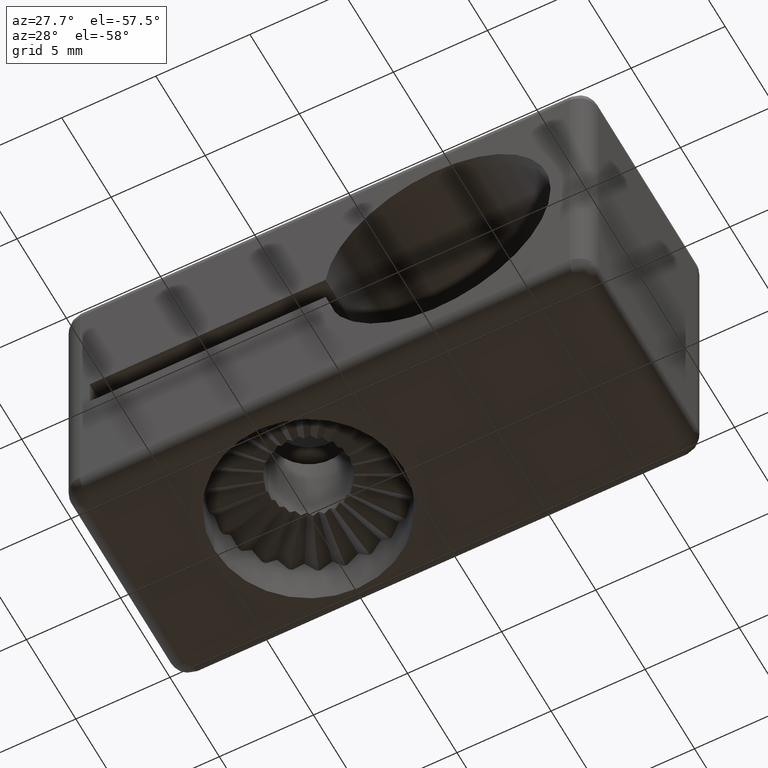
[diagram: clean part render]
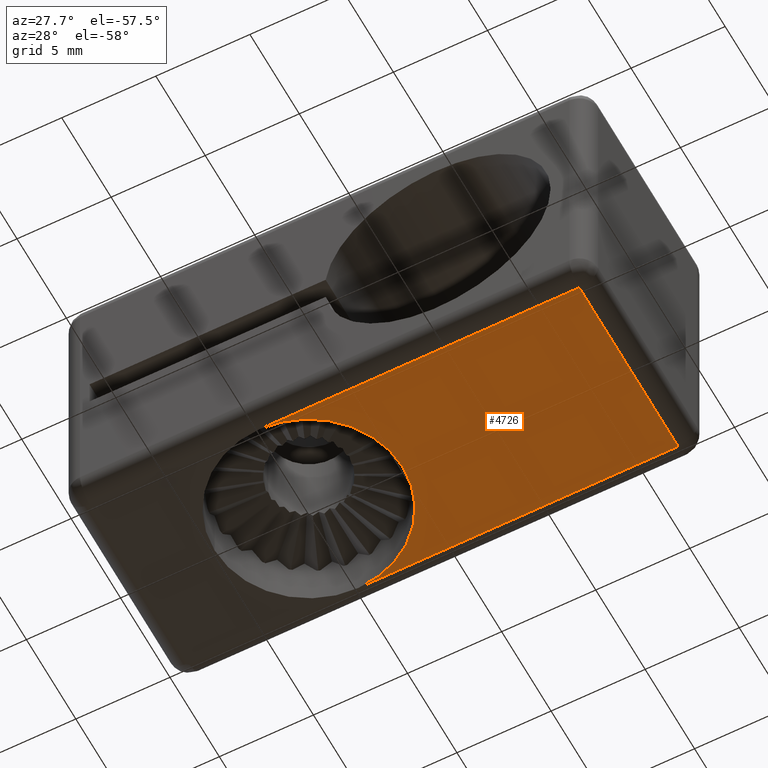
[diagram: same view with one face highlighted and labeled with its STEP entity id]
A machine part, auxiliary view. The second image highlights one B-rep face of the part: STEP entity #4726.
In plain terms, the highlighted planar face has unit normal (0, 0, 1).
Its self-contained STEP definition (entity closure, byte-faithful):
#320 = VECTOR ( 'NONE', #3031, 1000.000000000000000 ) ;
#491 = DIRECTION ( 'NONE',  ( 0.0000000000000000000, 0.0000000000000000000, -1.000000000000000000 ) ) ;
#599 = EDGE_CURVE ( 'NONE', #3716, #1193, #5389, .T. ) ;
#720 = DIRECTION ( 'NONE',  ( -1.000000000000000000, 0.0000000000000000000, 0.0000000000000000000 ) ) ;
#1032 = LINE ( 'NONE', #5135, #1169 ) ;
#1071 = DIRECTION ( 'NONE',  ( 0.0000000000000000000, 0.0000000000000000000, 1.000000000000000000 ) ) ;
#1157 = CARTESIAN_POINT ( 'NONE',  ( 17.00000000000000000, -4.999999999999999100, 0.0000000000000000000 ) ) ;
#1169 = VECTOR ( 'NONE', #5580, 1000.000000000000000 ) ;
#1193 = VERTEX_POINT ( 'NONE', #4594 ) ;
#1229 = ORIENTED_EDGE ( 'NONE', *, *, #1748, .F. ) ;
#1359 = DIRECTION ( 'NONE',  ( -1.000000000000000000, 0.0000000000000000000, 0.0000000000000000000 ) ) ;
#1500 = DIRECTION ( 'NONE',  ( 1.000000000000000000, 0.0000000000000000000, -0.0000000000000000000 ) ) ;
#1527 = ORIENTED_EDGE ( 'NONE', *, *, #599, .F. ) ;
#1596 = VERTEX_POINT ( 'NONE', #2444 ) ;
#1686 = DIRECTION ( 'NONE',  ( -1.000000000000000000, -3.336006684570780300E-017, -0.0000000000000000000 ) ) ;
#1748 = EDGE_CURVE ( 'NONE', #1596, #5374, #3643, .T. ) ;
#1788 = ORIENTED_EDGE ( 'NONE', *, *, #2541, .F. ) ;
#2102 = CIRCLE ( 'NONE', #3880, 5.000000000000000000 ) ;
#2444 = CARTESIAN_POINT ( 'NONE',  ( 4.592425496802574000E-016, -4.999999999999999100, 0.0000000000000000000 ) ) ;
#2541 = EDGE_CURVE ( 'NONE', #2805, #1596, #2102, .T. ) ;
#2689 = CARTESIAN_POINT ( 'NONE',  ( 17.00000000000000000, 5.000000000000000000, 0.0000000000000000000 ) ) ;
#2805 = VERTEX_POINT ( 'NONE', #5617 ) ;
#2845 = CARTESIAN_POINT ( 'NONE',  ( 17.00000000000000000, 5.000000000000000000, 0.0000000000000000000 ) ) ;
#2950 = CARTESIAN_POINT ( 'NONE',  ( -8.999999999999989300, -5.000000000000000000, 0.0000000000000000000 ) ) ;
#3031 = DIRECTION ( 'NONE',  ( 1.000000000000000000, 6.672013369141570400E-017, -0.0000000000000000000 ) ) ;
#3399 = CIRCLE ( 'NONE', #4865, 5.000000000000000000 ) ;
#3565 = ORIENTED_EDGE ( 'NONE', *, *, #4046, .F. ) ;
#3633 = PLANE ( 'NONE',  #4243 ) ;
#3643 = LINE ( 'NONE', #2950, #320 ) ;
#3716 = VERTEX_POINT ( 'NONE', #2689 ) ;
#3880 = AXIS2_PLACEMENT_3D ( 'NONE', #4541, #4189, #720 ) ;
#4046 = EDGE_CURVE ( 'NONE', #1193, #2805, #3399, .T. ) ;
#4189 = DIRECTION ( 'NONE',  ( 0.0000000000000000000, 0.0000000000000000000, -1.000000000000000000 ) ) ;
#4243 = AXIS2_PLACEMENT_3D ( 'NONE', #2845, #1071, #1500 ) ;
#4541 = CARTESIAN_POINT ( 'NONE',  ( 0.0000000000000000000, 0.0000000000000000000, 0.0000000000000000000 ) ) ;
#4594 = CARTESIAN_POINT ( 'NONE',  ( -1.530808498934191600E-016, 4.999999999999999100, 0.0000000000000000000 ) ) ;
#4673 = CARTESIAN_POINT ( 'NONE',  ( -8.999999999999989300, 4.999999999999999100, 0.0000000000000000000 ) ) ;
#4681 = ORIENTED_EDGE ( 'NONE', *, *, #5587, .F. ) ;
#4712 = EDGE_LOOP ( 'NONE', ( #1527, #4681, #1229, #1788, #3565 ) ) ;
#4726 = ADVANCED_FACE ( 'NONE', ( #5291 ), #3633, .F. ) ;
#4803 = CARTESIAN_POINT ( 'NONE',  ( 0.0000000000000000000, 0.0000000000000000000, 0.0000000000000000000 ) ) ;
#4846 = VECTOR ( 'NONE', #1686, 1000.000000000000000 ) ;
#4865 = AXIS2_PLACEMENT_3D ( 'NONE', #4803, #491, #1359 ) ;
#5135 = CARTESIAN_POINT ( 'NONE',  ( 17.00000000000000000, 5.000000000000000000, 0.0000000000000000000 ) ) ;
#5291 = FACE_OUTER_BOUND ( 'NONE', #4712, .T. ) ;
#5374 = VERTEX_POINT ( 'NONE', #1157 ) ;
#5389 = LINE ( 'NONE', #4673, #4846 ) ;
#5580 = DIRECTION ( 'NONE',  ( -0.0000000000000000000, 1.000000000000000000, 0.0000000000000000000 ) ) ;
#5587 = EDGE_CURVE ( 'NONE', #5374, #3716, #1032, .T. ) ;
#5617 = CARTESIAN_POINT ( 'NONE',  ( 5.000000000000000000, 6.123233995736766300E-016, 0.0000000000000000000 ) ) ;